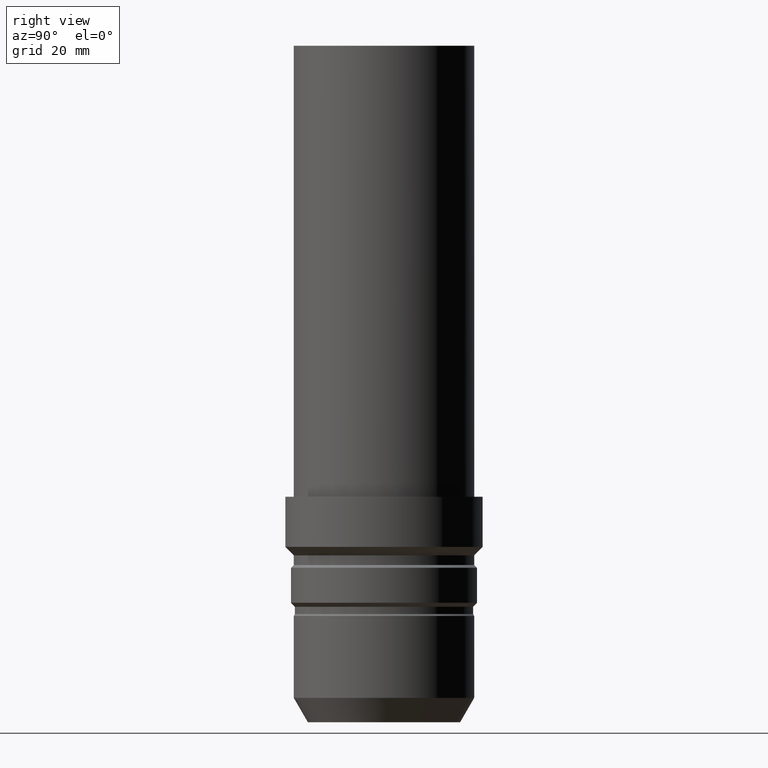
[diagram: clean part render]
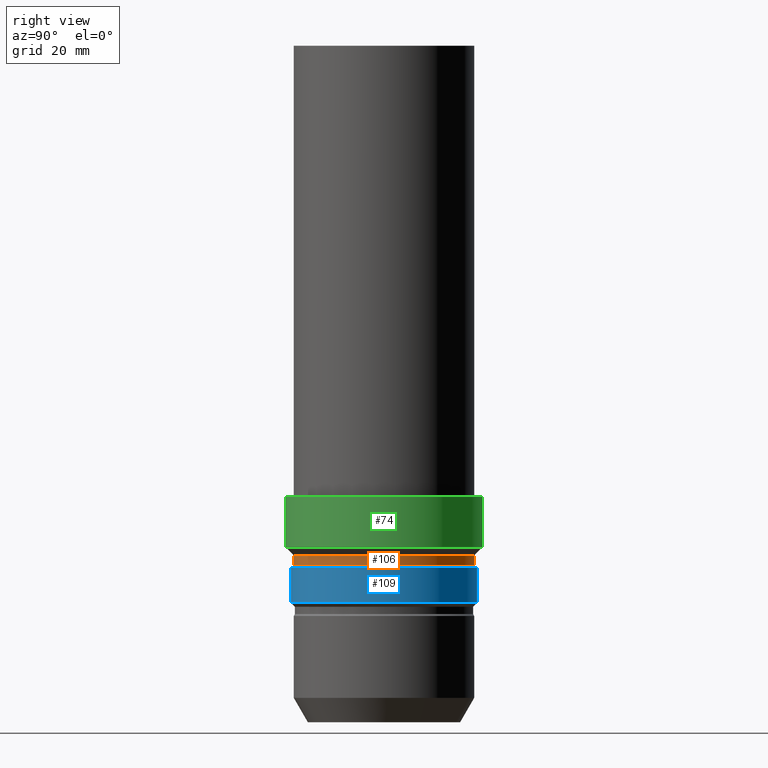
[diagram: same view with three faces highlighted in distinct colors, each labeled with its STEP entity id]
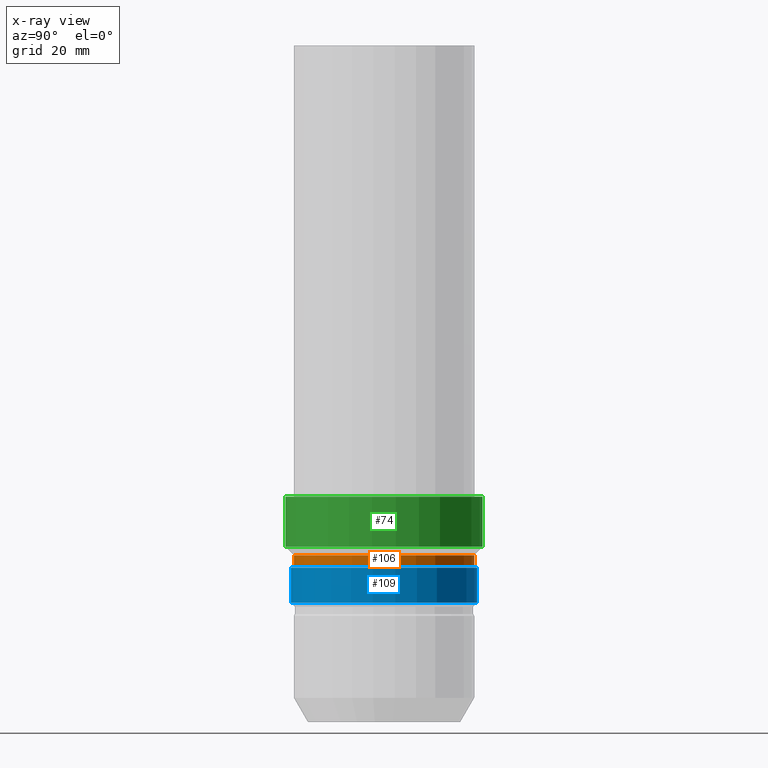
[diagram: x-ray of the same camera — body ghosted, the three highlighted faces saturated]
A machine part, right view with three faces highlighted in distinct colors.
The next image is the same camera in x-ray (body ghosted, the three faces saturated) — at least one of them is partly hidden behind the body in this view.
Their STEP definitions:

[orange] entity #106 — the highlighted cylindrical surface (bore or boss wall) has radius 16 mm, axis along (0, -0, -1).
#57=EDGE_CURVE('Unnamed[1]',#147,#147,#148,.T.);
#106=ADVANCED_FACE('Unnamed[1]',(#223,#224),#225,.T.);
#116=EDGE_CURVE('Unnamed[1]',#239,#239,#240,.T.);
#147=VERTEX_POINT('',#266);
#148=CIRCLE('',#267,16.0000000000002);
#223=FACE_BOUND('',#360,.T.);
#224=FACE_BOUND('',#361,.T.);
#225=CYLINDRICAL_SURFACE('',#362,16.0000000000002);
#239=VERTEX_POINT('',#380);
#240=CIRCLE('',#381,16.0000000000002);
#266=CARTESIAN_POINT('',(-1.70838228481049E-015,16.0000000000002,27.8999999999989));
#267=AXIS2_PLACEMENT_3D('',#401,#402,#403);
#360=EDGE_LOOP('',(#484));
#361=EDGE_LOOP('',(#485));
#362=AXIS2_PLACEMENT_3D('',#486,#487,#488);
#380=CARTESIAN_POINT('',(-1.81247726273802E-015,16.0000000000002,29.5999999999989));
#381=AXIS2_PLACEMENT_3D('',#503,#504,#505);
#401=CARTESIAN_POINT('',(-1.70838228481049E-015,5.18343829713607E-014,27.8999999999989));
#402=DIRECTION('',(6.12323399573677E-017,-1.85786318893773E-015,-1.0));
#403=DIRECTION('',(1.08934157648545E-031,1.0,-1.85786318893773E-015));
#484=ORIENTED_EDGE('',*,*,#57,.F.);
#485=ORIENTED_EDGE('',*,*,#116,.T.);
#486=CARTESIAN_POINT('',(-1.76042977377425E-015,5.34135666819578E-014,28.7499999999989));
#487=DIRECTION('',(6.12323399573677E-017,-1.85786318893773E-015,-1.0));
#488=DIRECTION('',(1.08934157648545E-031,1.0,-1.85786318893773E-015));
#503=CARTESIAN_POINT('',(-1.81247726273802E-015,5.49927503925549E-014,29.599999999999));
#504=DIRECTION('',(6.12323399573677E-017,-1.85786318893773E-015,-1.0));
#505=DIRECTION('',(1.08934157648545E-031,1.0,-1.85786318893773E-015));

[blue] entity #109 — the highlighted cylindrical surface (bore or boss wall) has radius 16.5 mm, axis along (0, -0, -1).
#82=EDGE_CURVE('Unnamed[1]',#185,#185,#186,.T.);
#87=EDGE_CURVE('Unnamed[1]',#193,#193,#194,.T.);
#109=ADVANCED_FACE('Unnamed[1]',(#228,#229),#230,.T.);
#185=VERTEX_POINT('',#313);
#186=CIRCLE('',#314,16.5000000000002);
#193=VERTEX_POINT('',#323);
#194=CIRCLE('',#324,16.5000000000001);
#228=FACE_BOUND('',#366,.T.);
#229=FACE_BOUND('',#367,.T.);
#230=CYLINDRICAL_SURFACE('',#368,16.5000000000001);
#313=CARTESIAN_POINT('',(-1.6777661148318E-015,16.5000000000002,27.3999999999989));
#314=AXIS2_PLACEMENT_3D('',#441,#442,#443);
#323=CARTESIAN_POINT('',(-1.29812560709621E-015,16.5000000000001,21.2000000000002));
#324=AXIS2_PLACEMENT_3D('',#450,#451,#452);
#366=EDGE_LOOP('',(#490));
#367=EDGE_LOOP('',(#491));
#368=AXIS2_PLACEMENT_3D('',#492,#493,#494);
#441=CARTESIAN_POINT('',(-1.67776611483181E-015,5.09054513768918E-014,27.3999999999989));
#442=DIRECTION('',(6.12323399573677E-017,-1.85786318893773E-015,-1.0));
#443=DIRECTION('',(1.08934157648545E-031,1.0,-1.85786318893773E-015));
#450=CARTESIAN_POINT('',(-1.29812560709621E-015,3.93866996054804E-014,21.2000000000003));
#451=DIRECTION('',(6.12323399573677E-017,-1.85786318893773E-015,-1.0));
#452=DIRECTION('',(1.08934157648545E-031,1.0,-1.85786318893773E-015));
#490=ORIENTED_EDGE('',*,*,#87,.F.);
#491=ORIENTED_EDGE('',*,*,#82,.T.);
#492=CARTESIAN_POINT('',(-1.48794586096401E-015,4.51460754911861E-014,24.2999999999996));
#493=DIRECTION('',(6.12323399573677E-017,-1.85786318893773E-015,-1.0));
#494=DIRECTION('',(1.08934157648545E-031,1.0,-1.85786318893773E-015));

[green] entity #74 — the highlighted cylindrical surface (bore or boss wall) has radius 17.5 mm, axis along (0, -0, -1).
#74=ADVANCED_FACE('Unnamed[1]',(#172,#173),#174,.T.);
#100=EDGE_CURVE('Unnamed[1]',#214,#214,#215,.T.);
#111=EDGE_CURVE('Unnamed[1]',#232,#232,#233,.T.);
#172=FACE_BOUND('',#296,.T.);
#173=FACE_BOUND('',#297,.T.);
#174=CYLINDRICAL_SURFACE('',#298,17.5000000000001);
#214=VERTEX_POINT('',#349);
#215=CIRCLE('',#350,17.5000000000001);
#232=VERTEX_POINT('',#371);
#233=CIRCLE('',#372,17.5);
#296=EDGE_LOOP('',(#427));
#297=EDGE_LOOP('',(#428));
#298=AXIS2_PLACEMENT_3D('',#429,#430,#431);
#349=CARTESIAN_POINT('',(-2.44929359829465E-015,17.5000000000002,39.9999999999991));
#350=AXIS2_PLACEMENT_3D('',#474,#475,#476);
#371=CARTESIAN_POINT('',(-1.90432577267406E-015,17.5000000000001,31.0999999999989));
#372=AXIS2_PLACEMENT_3D('',#495,#496,#497);
#427=ORIENTED_EDGE('',*,*,#100,.T.);
#428=ORIENTED_EDGE('',*,*,#111,.F.);
#429=CARTESIAN_POINT('',(-2.03903692058028E-015,6.18668441916246E-014,33.299999999999));
#430=DIRECTION('',(6.12323399573676E-017,-1.85786318893773E-015,-1.0));
#431=DIRECTION('',(1.08934157648545E-031,1.0,-1.85786318893773E-015));
#474=CARTESIAN_POINT('',(-2.44929359829465E-015,7.43145275575076E-014,39.9999999999992));
#475=DIRECTION('',(6.12323399573676E-017,-1.85786318893773E-015,-1.0));
#476=DIRECTION('',(1.08934157648545E-031,1.0,-1.85786318893773E-015));
#495=CARTESIAN_POINT('',(-1.90432577267407E-015,5.77795451759614E-014,31.0999999999989));
#496=DIRECTION('',(6.12323399573676E-017,-1.85786318893773E-015,-1.0));
#497=DIRECTION('',(1.08934157648545E-031,1.0,-1.85786318893773E-015));